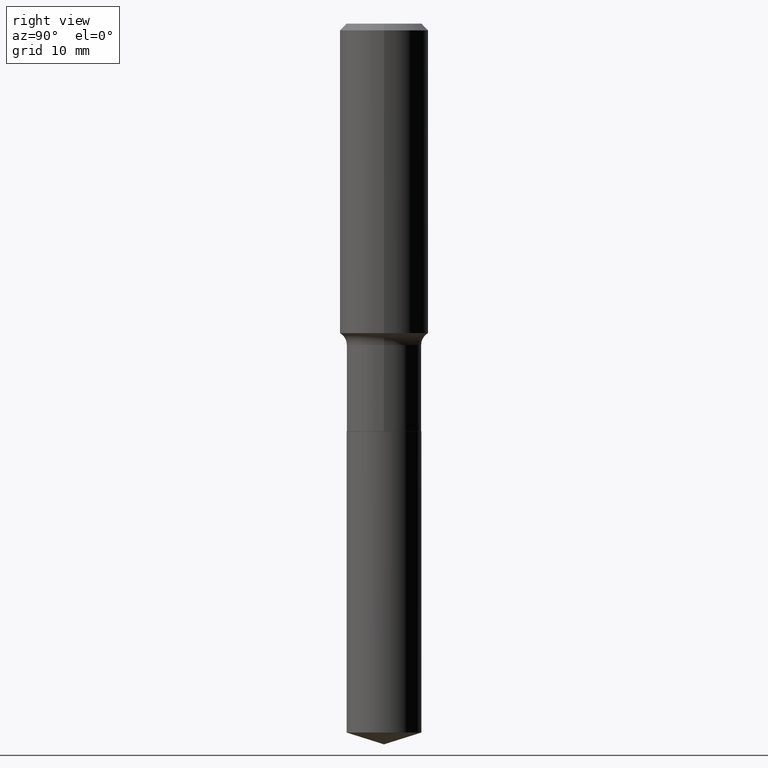
[diagram: clean part render]
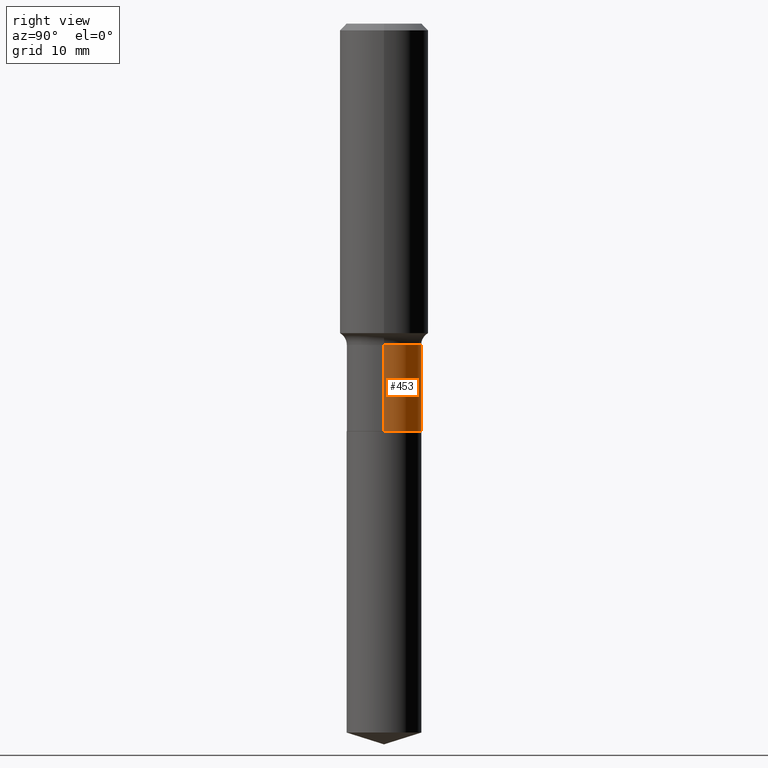
[diagram: same view with one face highlighted and labeled with its STEP entity id]
A machine part, right view. The second image highlights one B-rep face of the part: STEP entity #453.
In plain terms, the highlighted cylindrical surface (partial cylindrical patch) has radius 5.3581 mm, axis along (-0, 0, 1).
Its self-contained STEP definition (entity closure, byte-faithful):
#13 = CARTESIAN_POINT ( 'NONE',  ( -0.2109499999999999431, -5.672787342964832849E-15, -1.811700000000000310 ) ) ;
#63 = DIRECTION ( 'NONE',  ( 1.000000000000000000, -6.982962677686268288E-15, 0.000000000000000000 ) ) ;
#66 = CARTESIAN_POINT ( 'NONE',  ( 0.2109499999999999431, -7.798572718440045243E-15, -1.811700000000000310 ) ) ;
#70 = DIRECTION ( 'NONE',  ( 1.000000000000000000, -6.982962677686266711E-15, 4.876176775795935793E-29 ) ) ;
#76 = VERTEX_POINT ( 'NONE', #13 ) ;
#77 = VERTEX_POINT ( 'NONE', #163 ) ;
#96 = AXIS2_PLACEMENT_3D ( 'NONE', #247, #445, #70 ) ;
#105 = CIRCLE ( 'NONE', #258, 0.2109499999999999431 ) ;
#121 = ORIENTED_EDGE ( 'NONE', *, *, #260, .T. ) ;
#126 = EDGE_CURVE ( 'NONE', #77, #76, #267, .T. ) ;
#154 = ORIENTED_EDGE ( 'NONE', *, *, #126, .T. ) ;
#163 = CARTESIAN_POINT ( 'NONE',  ( -0.2109499999999999986, -5.672787342964832060E-15, -2.296400000000000219 ) ) ;
#169 = DIRECTION ( 'NONE',  ( 1.000000000000000000, -6.982962677686266711E-15, 0.000000000000000000 ) ) ;
#178 = CIRCLE ( 'NONE', #396, 0.2109499999999999986 ) ;
#181 = DIRECTION ( 'NONE',  ( -2.445468806185136877E-29, 3.491481338843145188E-15, 1.000000000000000000 ) ) ;
#201 = DIRECTION ( 'NONE',  ( -2.445468806185136877E-29, 3.491481338843145188E-15, 1.000000000000000000 ) ) ;
#227 = EDGE_LOOP ( 'NONE', ( #121, #154, #422, #462 ) ) ;
#244 = VECTOR ( 'NONE', #201, 39.37007874015748143 ) ;
#246 = CARTESIAN_POINT ( 'NONE',  ( 4.430455836165612608E-29, -6.325516741582127678E-15, -1.811700000000000310 ) ) ;
#247 = CARTESIAN_POINT ( 'NONE',  ( 0.000000000000000000, 0.000000000000000000, 0.000000000000000000 ) ) ;
#250 = FACE_OUTER_BOUND ( 'NONE', #227, .T. ) ;
#258 = AXIS2_PLACEMENT_3D ( 'NONE', #246, #397, #63 ) ;
#259 = VERTEX_POINT ( 'NONE', #284 ) ;
#260 = EDGE_CURVE ( 'NONE', #259, #77, #178, .T. ) ;
#267 = LINE ( 'NONE', #346, #244 ) ;
#282 = DIRECTION ( 'NONE',  ( -2.445468806185136597E-29, 3.491481338843145583E-15, 1.000000000000000000 ) ) ;
#284 = CARTESIAN_POINT ( 'NONE',  ( 0.2109499999999999986, -9.490893723377317855E-15, -2.296400000000000219 ) ) ;
#291 = LINE ( 'NONE', #479, #322 ) ;
#320 = EDGE_CURVE ( 'NONE', #446, #76, #105, .T. ) ;
#322 = VECTOR ( 'NONE', #181, 39.37007874015748143 ) ;
#346 = CARTESIAN_POINT ( 'NONE',  ( -0.2109499999999999709, 1.498889901085931135E-15, -1.037649357289272242E-29 ) ) ;
#352 = CARTESIAN_POINT ( 'NONE',  ( 5.615774566523547796E-29, -8.017837746519400290E-15, -2.296400000000000219 ) ) ;
#396 = AXIS2_PLACEMENT_3D ( 'NONE', #352, #282, #169 ) ;
#397 = DIRECTION ( 'NONE',  ( -2.445468806185136597E-29, 3.491481338843145583E-15, 1.000000000000000000 ) ) ;
#403 = EDGE_CURVE ( 'NONE', #259, #446, #291, .T. ) ;
#409 = CYLINDRICAL_SURFACE ( 'NONE', #96, 0.2109499999999999709 ) ;
#422 = ORIENTED_EDGE ( 'NONE', *, *, #320, .F. ) ;
#445 = DIRECTION ( 'NONE',  ( -2.445468806185136597E-29, 3.491481338843145583E-15, 1.000000000000000000 ) ) ;
#446 = VERTEX_POINT ( 'NONE', #66 ) ;
#453 = ADVANCED_FACE ( 'NONE', ( #250 ), #409, .T. ) ;
#462 = ORIENTED_EDGE ( 'NONE', *, *, #403, .F. ) ;
#479 = CARTESIAN_POINT ( 'NONE',  ( 0.2109499999999999709, -1.473055976857917762E-15, 1.028629490854152488E-29 ) ) ;